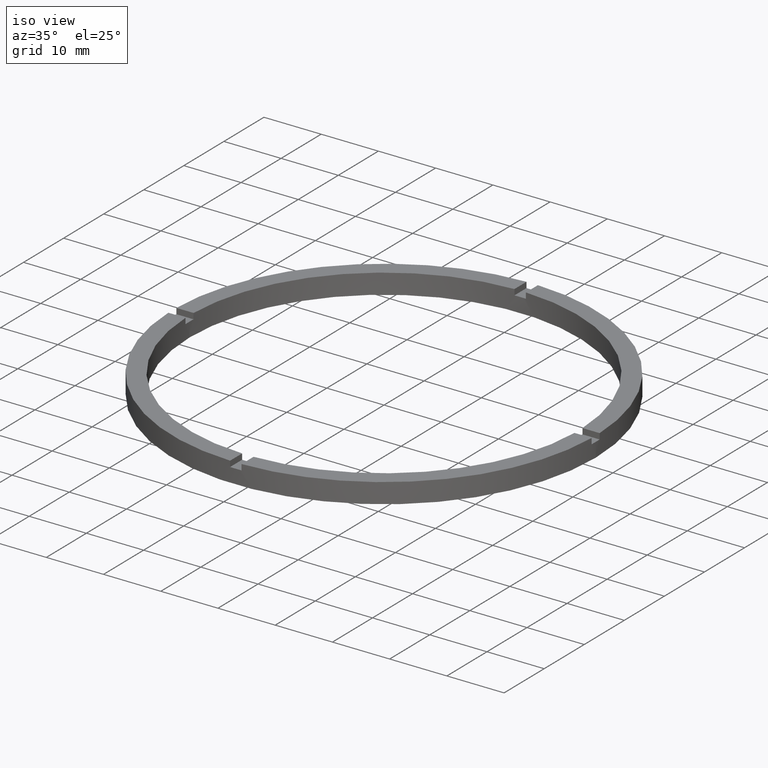
[diagram: clean part render]
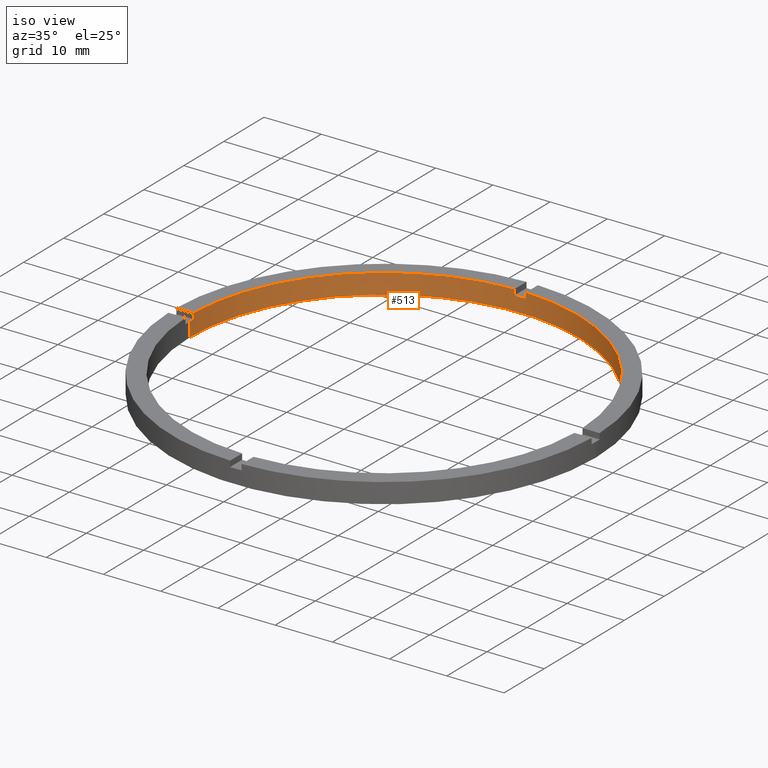
[diagram: same view with one face highlighted and labeled with its STEP entity id]
A machine part, iso view. The second image highlights one B-rep face of the part: STEP entity #513.
In plain terms, the highlighted cylindrical surface (partial cylindrical patch) has radius 34 mm, axis along (-0, -0, -1).
Its self-contained STEP definition (entity closure, byte-faithful):
#5 = LINE ( 'NONE', #131, #246 ) ;
#7 = CARTESIAN_POINT ( 'NONE',  ( 0.000000000000000000, 0.000000000000000000, 0.000000000000000000 ) ) ;
#12 = EDGE_CURVE ( 'NONE', #382, #31, #655, .T. ) ;
#13 = CIRCLE ( 'NONE', #335, 34.00000000000000000 ) ;
#14 = CARTESIAN_POINT ( 'NONE',  ( -34.00000000000000000, 0.000000000000000000, 0.000000000000000000 ) ) ;
#26 = CARTESIAN_POINT ( 'NONE',  ( 33.98529093593285921, 0.9999999999998421263, 2.500000000000000000 ) ) ;
#27 = ORIENTED_EDGE ( 'NONE', *, *, #713, .T. ) ;
#31 = VERTEX_POINT ( 'NONE', #252 ) ;
#50 = VECTOR ( 'NONE', #738, 1000.000000000000000 ) ;
#64 = EDGE_CURVE ( 'NONE', #31, #493, #393, .T. ) ;
#72 = DIRECTION ( 'NONE',  ( 1.000000000000000000, 0.000000000000000000, 0.000000000000000000 ) ) ;
#74 = DIRECTION ( 'NONE',  ( 0.000000000000000000, 0.000000000000000000, 1.000000000000000000 ) ) ;
#76 = EDGE_CURVE ( 'NONE', #150, #648, #659, .T. ) ;
#101 = AXIS2_PLACEMENT_3D ( 'NONE', #502, #535, #248 ) ;
#107 = ORIENTED_EDGE ( 'NONE', *, *, #515, .F. ) ;
#115 = VERTEX_POINT ( 'NONE', #705 ) ;
#131 = CARTESIAN_POINT ( 'NONE',  ( 33.98529093593285921, 0.9999999999998421263, 3.500000000000000000 ) ) ;
#134 = CARTESIAN_POINT ( 'NONE',  ( 0.9999999999999749090, 33.98529093593285921, 3.500000000000000000 ) ) ;
#147 = DIRECTION ( 'NONE',  ( 0.000000000000000000, 0.000000000000000000, 1.000000000000000000 ) ) ;
#150 = VERTEX_POINT ( 'NONE', #405 ) ;
#169 = DIRECTION ( 'NONE',  ( 1.000000000000000000, 0.000000000000000000, 0.000000000000000000 ) ) ;
#172 = AXIS2_PLACEMENT_3D ( 'NONE', #563, #74, #567 ) ;
#173 = DIRECTION ( 'NONE',  ( 0.000000000000000000, 0.000000000000000000, 1.000000000000000000 ) ) ;
#176 = CARTESIAN_POINT ( 'NONE',  ( -34.00000000000000000, 0.000000000000000000, 3.500000000000000000 ) ) ;
#178 = DIRECTION ( 'NONE',  ( -0.000000000000000000, -0.000000000000000000, -1.000000000000000000 ) ) ;
#183 = DIRECTION ( 'NONE',  ( 1.000000000000000000, 0.000000000000000000, 0.000000000000000000 ) ) ;
#186 = CARTESIAN_POINT ( 'NONE',  ( 34.00000000000000000, 4.163799117101000559E-15, 3.500000000000000000 ) ) ;
#192 = ORIENTED_EDGE ( 'NONE', *, *, #600, .F. ) ;
#208 = ORIENTED_EDGE ( 'NONE', *, *, #12, .F. ) ;
#216 = DIRECTION ( 'NONE',  ( 0.000000000000000000, 0.000000000000000000, 1.000000000000000000 ) ) ;
#224 = VERTEX_POINT ( 'NONE', #286 ) ;
#228 = CARTESIAN_POINT ( 'NONE',  ( 34.00000000000000000, 4.163799117101000559E-15, 2.500000000000000000 ) ) ;
#233 = ORIENTED_EDGE ( 'NONE', *, *, #419, .T. ) ;
#244 = CIRCLE ( 'NONE', #710, 34.00000000000000000 ) ;
#246 = VECTOR ( 'NONE', #178, 1000.000000000000000 ) ;
#248 = DIRECTION ( 'NONE',  ( 1.000000000000000000, 0.000000000000000000, 0.000000000000000000 ) ) ;
#252 = CARTESIAN_POINT ( 'NONE',  ( 34.00000000000000000, 4.163799117101000559E-15, 0.000000000000000000 ) ) ;
#258 = CARTESIAN_POINT ( 'NONE',  ( -33.98529093593285921, 0.9999999999999731326, 2.500000000000000000 ) ) ;
#270 = AXIS2_PLACEMENT_3D ( 'NONE', #301, #775, #453 ) ;
#278 = ORIENTED_EDGE ( 'NONE', *, *, #504, .T. ) ;
#280 = DIRECTION ( 'NONE',  ( 1.000000000000000000, 0.000000000000000000, 0.000000000000000000 ) ) ;
#286 = CARTESIAN_POINT ( 'NONE',  ( -33.98529093593285921, 0.9999999999999731326, 3.500000000000000000 ) ) ;
#297 = CARTESIAN_POINT ( 'NONE',  ( 0.000000000000000000, 0.000000000000000000, 3.500000000000000000 ) ) ;
#300 = AXIS2_PLACEMENT_3D ( 'NONE', #507, #691, #72 ) ;
#301 = CARTESIAN_POINT ( 'NONE',  ( 0.000000000000000000, 0.000000000000000000, 3.500000000000000000 ) ) ;
#313 = LINE ( 'NONE', #176, #50 ) ;
#335 = AXIS2_PLACEMENT_3D ( 'NONE', #297, #216, #280 ) ;
#338 = CARTESIAN_POINT ( 'NONE',  ( -34.00000000000000000, 0.000000000000000000, 2.500000000000000000 ) ) ;
#345 = ORIENTED_EDGE ( 'NONE', *, *, #64, .F. ) ;
#348 = DIRECTION ( 'NONE',  ( -0.000000000000000000, -0.000000000000000000, -1.000000000000000000 ) ) ;
#354 = LINE ( 'NONE', #733, #615 ) ;
#380 = ORIENTED_EDGE ( 'NONE', *, *, #702, .T. ) ;
#382 = VERTEX_POINT ( 'NONE', #228 ) ;
#385 = VECTOR ( 'NONE', #348, 1000.000000000000000 ) ;
#392 = VERTEX_POINT ( 'NONE', #338 ) ;
#393 = CIRCLE ( 'NONE', #537, 34.00000000000000000 ) ;
#397 = VERTEX_POINT ( 'NONE', #752 ) ;
#399 = VERTEX_POINT ( 'NONE', #26 ) ;
#405 = CARTESIAN_POINT ( 'NONE',  ( -1.000000000000025091, 33.98529093593285211, 3.500000000000000000 ) ) ;
#419 = EDGE_CURVE ( 'NONE', #150, #224, #772, .T. ) ;
#440 = CARTESIAN_POINT ( 'NONE',  ( 0.9999999999999749090, 33.98529093593285921, 2.500000000000000000 ) ) ;
#453 = DIRECTION ( 'NONE',  ( -1.000000000000000000, 0.000000000000000000, 0.000000000000000000 ) ) ;
#493 = VERTEX_POINT ( 'NONE', #14 ) ;
#500 = CARTESIAN_POINT ( 'NONE',  ( -1.000000000000025091, 33.98529093593285211, 2.500000000000000000 ) ) ;
#502 = CARTESIAN_POINT ( 'NONE',  ( 0.000000000000000000, 0.000000000000000000, 2.500000000000000000 ) ) ;
#504 = EDGE_CURVE ( 'NONE', #637, #392, #244, .T. ) ;
#507 = CARTESIAN_POINT ( 'NONE',  ( 0.000000000000000000, 0.000000000000000000, 2.500000000000000000 ) ) ;
#513 = ADVANCED_FACE ( 'NONE', ( #524 ), #525, .F. ) ;
#515 = EDGE_CURVE ( 'NONE', #397, #399, #5, .T. ) ;
#519 = DIRECTION ( 'NONE',  ( 0.000000000000000000, 0.000000000000000000, 1.000000000000000000 ) ) ;
#524 = FACE_OUTER_BOUND ( 'NONE', #766, .T. ) ;
#525 = CYLINDRICAL_SURFACE ( 'NONE', #270, 34.00000000000000000 ) ;
#532 = CARTESIAN_POINT ( 'NONE',  ( -1.000000000000025091, 33.98529093593285211, 3.500000000000000000 ) ) ;
#535 = DIRECTION ( 'NONE',  ( 0.000000000000000000, -0.000000000000000000, 1.000000000000000000 ) ) ;
#537 = AXIS2_PLACEMENT_3D ( 'NONE', #7, #519, #169 ) ;
#541 = CARTESIAN_POINT ( 'NONE',  ( 0.000000000000000000, 0.000000000000000000, 2.500000000000000000 ) ) ;
#551 = EDGE_CURVE ( 'NONE', #397, #115, #13, .T. ) ;
#559 = ORIENTED_EDGE ( 'NONE', *, *, #76, .F. ) ;
#563 = CARTESIAN_POINT ( 'NONE',  ( 0.000000000000000000, 0.000000000000000000, 3.500000000000000000 ) ) ;
#567 = DIRECTION ( 'NONE',  ( 1.000000000000000000, 0.000000000000000000, 0.000000000000000000 ) ) ;
#573 = VECTOR ( 'NONE', #682, 1000.000000000000000 ) ;
#574 = EDGE_CURVE ( 'NONE', #382, #399, #776, .T. ) ;
#581 = CIRCLE ( 'NONE', #101, 34.00000000000000000 ) ;
#590 = LINE ( 'NONE', #134, #573 ) ;
#600 = EDGE_CURVE ( 'NONE', #637, #224, #354, .T. ) ;
#615 = VECTOR ( 'NONE', #147, 1000.000000000000000 ) ;
#616 = DIRECTION ( 'NONE',  ( -0.000000000000000000, -0.000000000000000000, -1.000000000000000000 ) ) ;
#637 = VERTEX_POINT ( 'NONE', #258 ) ;
#648 = VERTEX_POINT ( 'NONE', #500 ) ;
#655 = LINE ( 'NONE', #186, #672 ) ;
#658 = VERTEX_POINT ( 'NONE', #440 ) ;
#659 = LINE ( 'NONE', #532, #385 ) ;
#672 = VECTOR ( 'NONE', #616, 1000.000000000000000 ) ;
#673 = ORIENTED_EDGE ( 'NONE', *, *, #574, .T. ) ;
#675 = ORIENTED_EDGE ( 'NONE', *, *, #551, .T. ) ;
#682 = DIRECTION ( 'NONE',  ( 0.000000000000000000, 0.000000000000000000, 1.000000000000000000 ) ) ;
#690 = ORIENTED_EDGE ( 'NONE', *, *, #760, .F. ) ;
#691 = DIRECTION ( 'NONE',  ( 0.000000000000000000, 0.000000000000000000, 1.000000000000000000 ) ) ;
#702 = EDGE_CURVE ( 'NONE', #658, #648, #581, .T. ) ;
#705 = CARTESIAN_POINT ( 'NONE',  ( 0.9999999999999749090, 33.98529093593285921, 3.500000000000000000 ) ) ;
#710 = AXIS2_PLACEMENT_3D ( 'NONE', #541, #173, #183 ) ;
#713 = EDGE_CURVE ( 'NONE', #392, #493, #313, .T. ) ;
#733 = CARTESIAN_POINT ( 'NONE',  ( -33.98529093593285921, 0.9999999999999731326, 3.500000000000000000 ) ) ;
#738 = DIRECTION ( 'NONE',  ( -0.000000000000000000, -0.000000000000000000, -1.000000000000000000 ) ) ;
#752 = CARTESIAN_POINT ( 'NONE',  ( 33.98529093593285921, 0.9999999999998421263, 3.500000000000000000 ) ) ;
#760 = EDGE_CURVE ( 'NONE', #658, #115, #590, .T. ) ;
#766 = EDGE_LOOP ( 'NONE', ( #208, #673, #107, #675, #690, #380, #559, #233, #192, #278, #27, #345 ) ) ;
#772 = CIRCLE ( 'NONE', #172, 34.00000000000000000 ) ;
#775 = DIRECTION ( 'NONE',  ( -0.000000000000000000, -0.000000000000000000, -1.000000000000000000 ) ) ;
#776 = CIRCLE ( 'NONE', #300, 34.00000000000000000 ) ;